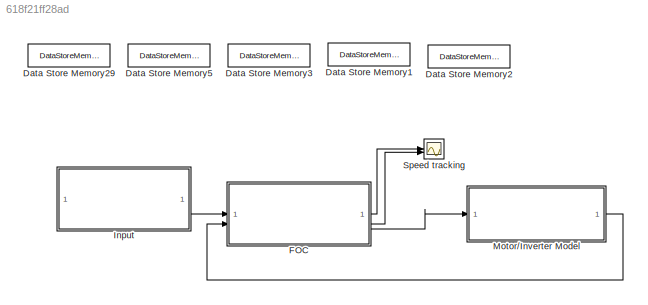
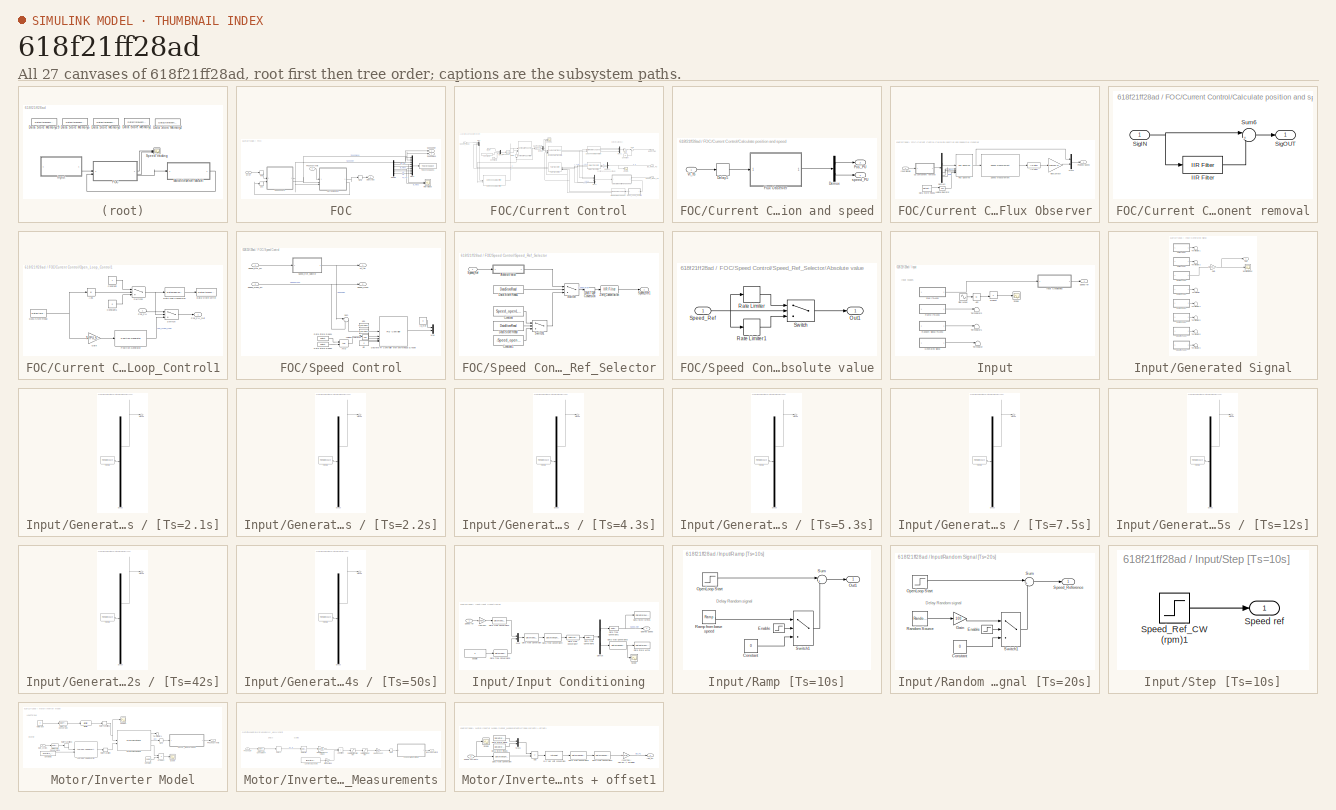
[diagram: thumbnail index - all 27 canvases of the model, root first then tree order]
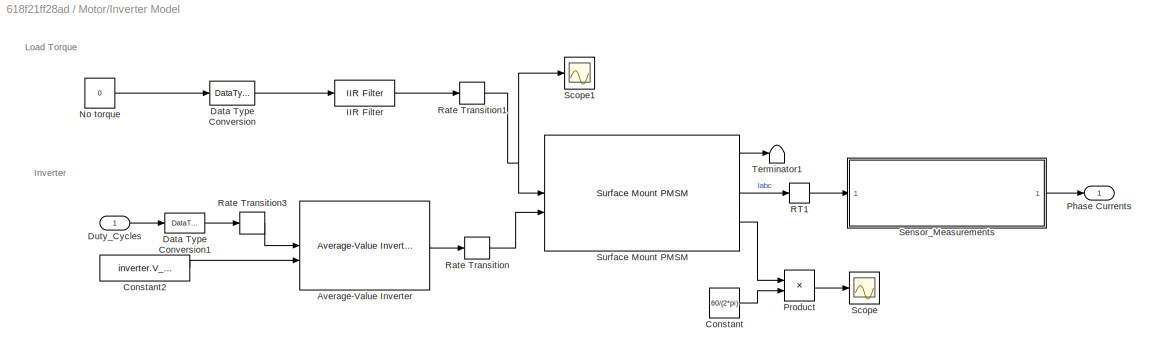
MODEL slx_618f21ff28ad
KIND model
CONFIG AbsTol = auto
CONFIG EnableMultiTasking = off
CONFIG FixedStep = auto
CONFIG MaxStep = auto
CONFIG MinStep = auto
CONFIG RelTol = 1e-3
CONFIG SampleTimeConstraint = Unconstrained
CONFIG SolverName = VariableStepAuto
CONFIG StartTime = 0.0
CONFIG StopTime = 10
BLOCK [DataStoreMemory] Data Store Memory1
  DataStoreName = IaOffset
  InitialValue = inverter.CtSensAOffset
  ShowAdditionalParam = off
BLOCK [DataStoreMemory] Data Store Memory2
  DataStoreName = IbOffset
  InitialValue = inverter.CtSensBOffset
  ShowAdditionalParam = off
BLOCK [DataStoreMemory] Data Store Memory29
  DataStoreName = Enable
  OutDataTypeStr = boolean
  ReadBeforeWriteMsg = warning
  ShowAdditionalParam = off
  WriteAfterReadMsg = warning
  WriteAfterWriteMsg = warning
BLOCK [DataStoreMemory] Data Store Memory3
  DataStoreName = Speed_ref
  InitialValue = 0.1
  OutDataTypeStr = dataType
  ReadBeforeWriteMsg = warning
  ShowAdditionalParam = off
  WriteAfterReadMsg = warning
  WriteAfterWriteMsg = warning
BLOCK [DataStoreMemory] Data Store Memory5
  DataStoreName = EnClosedLoop
  OutDataTypeStr = boolean
  ReadBeforeWriteMsg = warning
  ShowAdditionalParam = off
  WriteAfterReadMsg = warning
  WriteAfterWriteMsg = warning
BLOCK [SubSystem] FOC
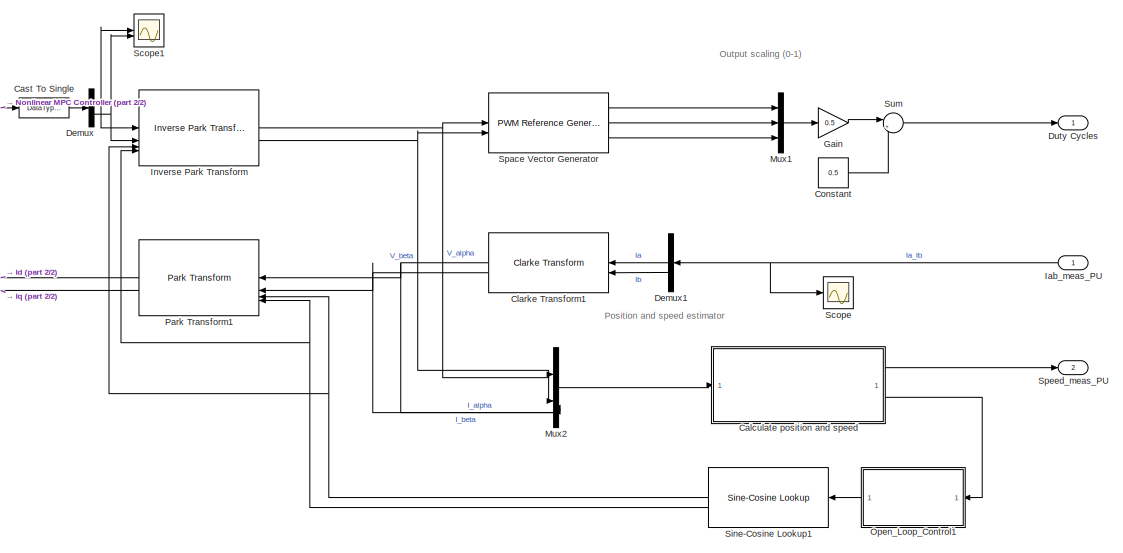
[diagram: FOC/Current Control - part 1/2, right side, full height]
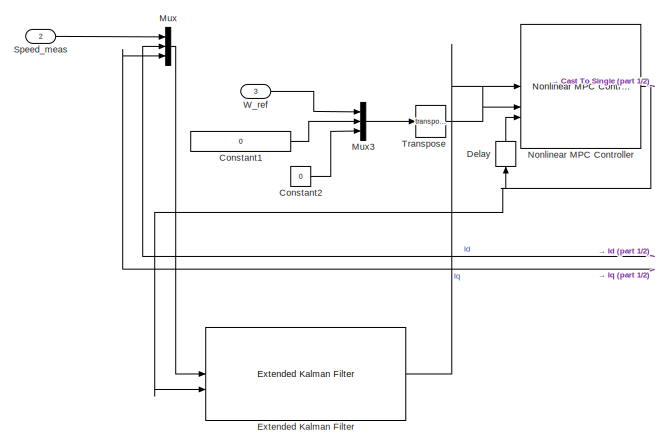
[diagram: FOC/Current Control - part 2/2, left side, full height]
BLOCK [SubSystem] FOC/Current Control
BLOCK [SubSystem] FOC/Current Control/Calculate position and speed
BLOCK [Delay] FOC/Current Control/Calculate position and speed/Delay5
  DelayLength = 1
  InputPortMap = u0
BLOCK [Demux] FOC/Current Control/Calculate position and speed/Demux
  Outputs = 2
BLOCK [SubSystem] FOC/Current Control/Calculate position and speed/Flux Observer
BLOCK [SubSystem] FOC/Current Control/Calculate position and speed/Flux Observer/DC component removal
BLOCK [Reference] FOC/Current Control/Calculate position and speed/Flux Observer/DC component removal/IIR Filter  REF=mcbcontrolslib/IIR Filter
  SourceBlock = mcbcontrolslib/IIR Filter
  SourceType = IIR Filter
BLOCK [Inport] FOC/Current Control/Calculate position and speed/Flux Observer/DC component removal/SigIN
BLOCK [Outport] FOC/Current Control/Calculate position and speed/Flux Observer/DC component removal/SigOUT
BLOCK [Sum] FOC/Current Control/Calculate position and speed/Flux Observer/DC component removal/Sum6
  AccumDataTypeStr = Inherit: Same as first input
  Inputs = |+-
  OutDataTypeStr = Inherit: Same as first input
  RndMeth = Simplest
BLOCK [DataStoreRead] FOC/Current Control/Calculate position and speed/Flux Observer/Data Store Read1
  DataStoreName = Enable
  IndexOptions = Index vector (dialog)
  Indices = 1
  OutputSizes = 1
BLOCK [Demux] FOC/Current Control/Calculate position and speed/Flux Observer/Demux2
BLOCK [Reference] FOC/Current Control/Calculate position and speed/Flux Observer/Flux Observer  REF=mcbpositiondecoderlib/Flux Observer
  SourceBlock = mcbpositiondecoderlib/Flux Observer
  SourceType = Flux Observer
BLOCK [Reference] FOC/Current Control/Calculate position and speed/Flux Observer/IIR Filter  REF=mcbcontrolslib/IIR Filter
  SourceBlock = mcbcontrolslib/IIR Filter
  SourceType = IIR Filter
BLOCK [Inport] FOC/Current Control/Calculate position and speed/Flux Observer/InputSignals
BLOCK [Logic] FOC/Current Control/Calculate position and speed/Flux Observer/Logical Operator
  AllPortsSameDT = off
  IconShape = distinctive
  Operator = NOT
  OutDataTypeStr = boolean
BLOCK [Mux] FOC/Current Control/Calculate position and speed/Flux Observer/Mux2
  DisplayOption = bar
  Inputs = 2
BLOCK [Outport] FOC/Current Control/Calculate position and speed/Flux Observer/Position//Speed
BLOCK [Reference] FOC/Current Control/Calculate position and speed/Flux Observer/Speed Measurement  REF=mcbpositiondecoderlib/Speed Measurement
  SourceBlock = mcbpositiondecoderlib/Speed Measurement
  SourceType = Speed Measurement
BLOCK [Gain] FOC/Current Control/Calculate position and speed/Flux Observer/elect2mech
  Gain = 1/pmsm.p
  OutDataTypeStr = Inherit: Same as input
  RndMeth = Simplest
BLOCK [Outport] FOC/Current Control/Calculate position and speed/Pos_PU
  Port = 2
BLOCK [Inport] FOC/Current Control/Calculate position and speed/VI_fb
BLOCK [Outport] FOC/Current Control/Calculate position and speed/speed_PU
BLOCK [DataTypeConversion] FOC/Current Control/Cast To Single
  OutDataTypeStr = single
  RndMeth = Floor
  SaturateOnIntegerOverflow = off
BLOCK [Reference] FOC/Current Control/Clarke Transform1  REF=mcbcontrolslib/Clarke Transform
  NameLocation = top
  SourceBlock = mcbcontrolslib/Clarke Transform
  SourceType = Clarke Transform
BLOCK [Constant] FOC/Current Control/Constant
  OutDataTypeStr = dataType
  Value = 0.5
BLOCK [Constant] FOC/Current Control/Constant1
  Value = 0
BLOCK [Constant] FOC/Current Control/Constant2
  Value = 0
BLOCK [Delay] FOC/Current Control/Delay
  DelayLength = 1
  InitialCondition = 0
  InputPortMap = u0
  NameLocation = left
  UseCircularBuffer = on
  UserDataPersistent = on
BLOCK [Demux] FOC/Current Control/Demux
  Outputs = 2
BLOCK [Demux] FOC/Current Control/Demux1
  NameLocation = top
  Outputs = 2
BLOCK [Outport] FOC/Current Control/Duty Cycles
  VectorParamsAs1DForOutWhenUnconnected = off
BLOCK [Reference] FOC/Current Control/Extended Kalman Filter  REF=sharedTrackingLibrary/Extended Kalman Filter
  LibrarySourceBlock = cstblocks/State Estimation/Extended Kalman Filter
  SourceBlock = sharedTrackingLibrary/Extended Kalman Filter
  SourceType = Extended Kalman Filter
BLOCK [Gain] FOC/Current Control/Gain
  Gain = 0.5
  OutDataTypeStr = Inherit: Same as input
BLOCK [Inport] FOC/Current Control/Iab_meas_PU
  NameLocation = top
BLOCK [Reference] FOC/Current Control/Inverse Park Transform  REF=mcbcontrolslib/Inverse Park Transform
  SourceBlock = mcbcontrolslib/Inverse Park Transform
  SourceType = Inverse Park Transform
BLOCK [Mux] FOC/Current Control/Mux
  DisplayOption = bar
  Inputs = 3
BLOCK [Mux] FOC/Current Control/Mux1
  DisplayOption = bar
  Inputs = 3
BLOCK [Mux] FOC/Current Control/Mux2
  DisplayOption = bar
BLOCK [Mux] FOC/Current Control/Mux3
  DisplayOption = bar
  Inputs = 3
BLOCK [Reference] FOC/Current Control/Nonlinear MPC Controller  REF=mpclib/Nonlinear MPC Controller  (lib defined in mdl_ae329e0e0455)
  SourceBlock = mpclib/Nonlinear MPC Controller
  SourceType = NonlinearMPC
BLOCK [SubSystem] FOC/Current Control/Open_Loop_Control1
  NameLocation = top
BLOCK [Abs] FOC/Current Control/Open_Loop_Control1/Abs
  SaturateOnIntegerOverflow = off
BLOCK [Constant] FOC/Current Control/Open_Loop_Control1/Constant
  OutDataTypeStr = uint16
BLOCK [Constant] FOC/Current Control/Open_Loop_Control1/Constant1
  OutDataTypeStr = uint16
  Value = 0
BLOCK [DataStoreRead] FOC/Current Control/Open_Loop_Control1/Data Store Read
  DataStoreName = Speed_ref
  IndexOptions = Index vector (dialog)
  Indices = 1
  OutputSizes = 1
BLOCK [DataStoreWrite] FOC/Current Control/Open_Loop_Control1/Data Store Write
  DataStoreName = EnClosedLoop
  IndexOptions = Index vector (dialog)
  Indices = 1
  OutputSizes = 1
BLOCK [DataTypeConversion] FOC/Current Control/Open_Loop_Control1/Data Type Conversion
  OutDataTypeStr = boolean
  RndMeth = Simplest
  SaturateOnIntegerOverflow = off
BLOCK [Gain] FOC/Current Control/Open_Loop_Control1/Gain
  Gain = Ts*PU_System.N_base*pmsm.p/60
  OutDataTypeStr = Inherit: Same as input
  ParamDataTypeStr = Inherit: Same as input
BLOCK [Inport] FOC/Current Control/Open_Loop_Control1/Pos_PU
BLOCK [Outport] FOC/Current Control/Open_Loop_Control1/Pos_PU_Out
BLOCK [Reference] FOC/Current Control/Open_Loop_Control1/Position Generator  REF=mcbcontrolslib/Position Generator
  SourceBlock = mcbcontrolslib/Position Generator
  SourceType = Position Generator
BLOCK [Switch] FOC/Current Control/Open_Loop_Control1/Switch
  Criteria = u2 ~= 0
  InputSameDT = off
  SaturateOnIntegerOverflow = off
  Threshold = 0.1
BLOCK [Switch] FOC/Current Control/Open_Loop_Control1/Switch2
  Criteria = u2 > Threshold
  InputSameDT = off
  SaturateOnIntegerOverflow = off
  Threshold = Speed_openLoop_PU
BLOCK [Reference] FOC/Current Control/Park Transform1  REF=mcbcontrolslib/Park Transform
  NameLocation = top
  SourceBlock = mcbcontrolslib/Park Transform
  SourceType = Park Transform
BLOCK [Scope] FOC/Current Control/Scope
  Floating = off
  NumInputPorts = 1
  ScopeSpecificationString = Simulink.scopes.TimeScopeBlockCfg('CurrentConfiguration', extmgr.ConfigurationSet(extmgr.Configuration('Core','General UI',true),extmgr.Configuration('Core','Source UI',true),extmgr.Configuration('Sources','WiredSimulink',true,'DataLoggingVariableName','ScopeData1'),extmgr.Configuration('Visuals','Time Domain',true,'SerializedDisplays',{struct('MinYLimReal','-1.45288','MaxYLimReal','1.21558','YLab...<+1495ch>
BLOCK [Scope] FOC/Current Control/Scope1
  Floating = off
  NumInputPorts = 2
  ScopeSpecificationString = Simulink.scopes.TimeScopeBlockCfg('CurrentConfiguration', extmgr.ConfigurationSet(extmgr.Configuration('Core','General UI',true),extmgr.Configuration('Core','Source UI',true),extmgr.Configuration('Sources','WiredSimulink',true,'DataLoggingVariableName','ScopeData1'),extmgr.Configuration('Visuals','Time Domain',true,'SerializedDisplays',{struct('MinYLimReal','0.20765','MaxYLimReal','0.55843','YLabe...<+1536ch>
BLOCK [Reference] FOC/Current Control/Sine-Cosine Lookup1  REF=mcbcontrolslib/Sine-Cosine Lookup
  NameLocation = top
  SourceBlock = mcbcontrolslib/Sine-Cosine Lookup
  SourceType = Sine-Cosine Lookup
BLOCK [Reference] FOC/Current Control/Space Vector Generator  REF=mcbcontrolslib/PWM Reference Generator
  SourceBlock = mcbcontrolslib/PWM Reference Generator
  SourceType = PWM Modulation
BLOCK [Inport] FOC/Current Control/Speed_meas
  Port = 2
BLOCK [Outport] FOC/Current Control/Speed_meas_PU
  InitialOutput = 0
  Port = 2
  VectorParamsAs1DForOutWhenUnconnected = off
BLOCK [Sum] FOC/Current Control/Sum
  AccumDataTypeStr = Inherit: Same as first input
  Inputs = |++
BLOCK [Math] FOC/Current Control/Transpose
  Operator = transpose
  OutputSignalType = real
BLOCK [Inport] FOC/Current Control/W_ref
  Port = 3
BLOCK [Demux] FOC/Demux
  Commented = on
  Outputs = 6
BLOCK [Outport] FOC/Duty cycles
  Port = 3
BLOCK [Scope] FOC/Internal loop
  Commented = on
  Floating = off
  NumInputPorts = 2
  ScopeSpecificationString = Simulink.scopes.TimeScopeBlockCfg('CurrentConfiguration', extmgr.ConfigurationSet(extmgr.Configuration('Core','General UI',true,'FigureColor',[1 1 1]),extmgr.Configuration('Core','Source UI',true),extmgr.Configuration('Sources','WiredSimulink',true,'DataLoggingVariableName','ScopeData4'),extmgr.Configuration('Visuals','Time Domain',true,'SerializedDisplays',{struct('MinYLimReal','-0.72705','MaxYLi...<+2022ch>
BLOCK [Mux] FOC/Mux1
  Commented = on
  DisplayOption = bar
  Inputs = 8
BLOCK [Inport] FOC/Phase Currents
  Port = 2
BLOCK [RateTransition] FOC/RT3
  Deterministic = off
BLOCK [RateTransition] FOC/RT4
  Deterministic = off
  OutPortSampleTime = Ts_speed
BLOCK [RateTransition] FOC/RT6
  Deterministic = off
  OutPortSampleTime = Ts_speed
BLOCK [SubSystem] FOC/Speed Control
  RTWSystemCode = Reusable function
  SystemSampleTime = Ts_speed
  TreatAsAtomicUnit = on
BLOCK [Logic] FOC/Speed Control/AND
  AllPortsSameDT = off
  Commented = on
  IconShape = distinctive
  OutDataTypeStr = boolean
BLOCK [DataStoreRead] FOC/Speed Control/Data Store Read1
  Commented = on
  DataStoreName = Enable
  IndexOptions = Index vector (dialog)
  Indices = 1
  OutputSizes = 1
BLOCK [DataStoreRead] FOC/Speed Control/Data Store Read2
  Commented = on
  DataStoreName = EnClosedLoop
  IndexOptions = Index vector (dialog)
  Indices = 1
  OutputSizes = 1
BLOCK [Reference] FOC/Speed Control/Discrete PI Controller with anti-windup & reset  REF=slpidlib/PID Controller
  Commented = on
  LibrarySourceBlock = mcbcontrolslib/PI Controller
  SourceBlock = slpidlib/PID Controller
  SourceType = PID 1dof
BLOCK [Constant] FOC/Speed Control/Id_Ref
  Commented = on
  OutDataTypeStr = dataType
  Value = 0
BLOCK [Constant] FOC/Speed Control/Ki1
  Commented = on
  NameLocation = top
  OutDataTypeStr = dataType
  SampleTime = -1
  Value = PI_params.Ki_speed*Ts_speed
BLOCK [Constant] FOC/Speed Control/Ki2
  Commented = on
  NameLocation = top
  OutDataTypeStr = dataType
  SampleTime = -1
  Value = 0
BLOCK [Constant] FOC/Speed Control/Kp1
  Commented = on
  NameLocation = top
  OutDataTypeStr = dataType
  SampleTime = -1
  Value = PI_params.Kp_speed
BLOCK [Logic] FOC/Speed Control/Logical Operator
  AllPortsSameDT = off
  Commented = on
  IconShape = distinctive
  Operator = NOT
  OutDataTypeStr = boolean
BLOCK [Mux] FOC/Speed Control/Mux
  Commented = on
  DisplayOption = bar
  Inputs = 2
BLOCK [Inport] FOC/Speed Control/Speed_Meas_PU
  Port = 2
BLOCK [Inport] FOC/Speed Control/Speed_Ref_PU
BLOCK [SubSystem] FOC/Speed Control/Speed_Ref_Selector
BLOCK [SubSystem] FOC/Speed Control/Speed_Ref_Selector/Absolute value
BLOCK [Outport] FOC/Speed Control/Speed_Ref_Selector/Absolute value/Out1
BLOCK [RateLimiter] FOC/Speed Control/Speed_Ref_Selector/Absolute value/Rate Limiter
  FallingSlewLimit = -acceleration
  InitialCondition = Speed_openLoop_PU
  RisingSlewLimit = acceleration
  SampleTimeMode = inherited
BLOCK [RateLimiter] FOC/Speed Control/Speed_Ref_Selector/Absolute value/Rate Limiter1
  FallingSlewLimit = -acceleration
  InitialCondition = -Speed_openLoop_PU
  RisingSlewLimit = acceleration
  SampleTimeMode = inherited
BLOCK [Inport] FOC/Speed Control/Speed_Ref_Selector/Absolute value/Speed_Ref
BLOCK [Switch] FOC/Speed Control/Speed_Ref_Selector/Absolute value/Switch
  InputSameDT = off
  SaturateOnIntegerOverflow = off
BLOCK [Constant] FOC/Speed Control/Speed_Ref_Selector/Constant
  OutDataTypeStr = dataType
  Value = Speed_openLoop_PU
BLOCK [Constant] FOC/Speed Control/Speed_Ref_Selector/Constant1
  OutDataTypeStr = dataType
  Value = -Speed_openLoop_PU
BLOCK [DataStoreRead] FOC/Speed Control/Speed_Ref_Selector/Data Store Read
  DataStoreName = Speed_ref
  IndexOptions = Index vector (dialog)
  Indices = 1
  OutputSizes = 1
BLOCK [DataStoreRead] FOC/Speed Control/Speed_Ref_Selector/Data Store Read1
  DataStoreName = EnClosedLoop
  IndexOptions = Index vector (dialog)
  Indices = 1
  OutputSizes = 1
BLOCK [DataTypeConversion] FOC/Speed Control/Speed_Ref_Selector/Data Type Conversion
  OutDataTypeStr = double
  RndMeth = Floor
  SaturateOnIntegerOverflow = off
BLOCK [Inport] FOC/Speed Control/Speed_Ref_Selector/Speed_Ref
BLOCK [Outport] FOC/Speed Control/Speed_Ref_Selector/Speed_Ref1
BLOCK [Switch] FOC/Speed Control/Speed_Ref_Selector/Switch
  Criteria = u2 > Threshold
  InputSameDT = off
  SaturateOnIntegerOverflow = off
BLOCK [Switch] FOC/Speed Control/Speed_Ref_Selector/Switch1
  Criteria = u2 > Threshold
  InputSameDT = off
  SaturateOnIntegerOverflow = off
BLOCK [Reference] FOC/Speed Control/Speed_Ref_Selector/Zero_Cancellation  REF=mcbcontrolslib/IIR Filter
  SourceBlock = mcbcontrolslib/IIR Filter
  SourceType = IIR Filter
BLOCK [Outport] FOC/Speed Control/Speed_meas
  Port = 2
  VectorParamsAs1DForOutWhenUnconnected = off
BLOCK [Sum] FOC/Speed Control/Sum
  Commented = on
  Inputs = |+-
  OutDataTypeStr = Inherit: Same as first input
BLOCK [Outport] FOC/Speed Control/W_ref
  VectorParamsAs1DForOutWhenUnconnected = off
BLOCK [Outport] FOC/SpeedMeas
  Port = 2
BLOCK [Outport] FOC/SpeedeRef
BLOCK [ToWorkspace] FOC/To Workspace1
  Commented = on
  FixptAsFi = on
  MaxDataPoints = inf
  SampleTime = -1
  SaveFormat = Structure
  VariableName = simout
BLOCK [Inport] FOC/Wref
BLOCK [SubSystem] Input
BLOCK [Abs] Input/Abs
  Commented = on
  SaturateOnIntegerOverflow = off
BLOCK [SubSystem] Input/Generated Signal
  NameLocation = top
BLOCK [SubSystem] Input/Generated Signal/0.05s // [Ts=2.1s]
  ClipboardFcn = sigbuilder_block('clipboard');
  CloseFcn = sigbuilder_block('close');
  ContinueFcn = sigbuilder_block('continue');
  CopyFcn = sigbuilder_block('copy');
  DeleteFcn = sigbuilder_block('delete');
  LoadFcn = sigbuilder_block('load');
  MaskHideContents = on
  ModelCloseFcn = sigbuilder_block('modelClose');
  NameChangeFcn = sigbuilder_block('namechange');
  OpenFcn = sigbuilder_block('open',[5.4 5.4 1141.2 580.8 ]);
  PauseFcn = sigbuilder_block('pause');
  PreSaveFcn = sigbuilder_block('preSave');
  StartFcn = sigbuilder_block('start');
  StopFcn = sigbuilder_block('stop');
  Tag = STV Subsys
BLOCK [Demux] Input/Generated Signal/0.05s // [Ts=2.1s]/Demux
  DisplayOption = none
  Outputs = 1
  Tag = STV Demux
BLOCK [FromWorkspace] Input/Generated Signal/0.05s // [Ts=2.1s]/FromWs
  Tag = STV FromWs
  VariableName = tuvar
BLOCK [Outport] Input/Generated Signal/0.05s // [Ts=2.1s]/Signal 1
  Tag = STV Outport
BLOCK [SubSystem] Input/Generated Signal/0.05s // [Ts=2.2s]
  ClipboardFcn = sigbuilder_block('clipboard');
  CloseFcn = sigbuilder_block('close');
  ContinueFcn = sigbuilder_block('continue');
  CopyFcn = sigbuilder_block('copy');
  DeleteFcn = sigbuilder_block('delete');
  LoadFcn = sigbuilder_block('load');
  MaskHideContents = on
  ModelCloseFcn = sigbuilder_block('modelClose');
  NameChangeFcn = sigbuilder_block('namechange');
  OpenFcn = sigbuilder_block('open',[5.4 5.4 1141.2 580.8 ]);
  PauseFcn = sigbuilder_block('pause');
  PreSaveFcn = sigbuilder_block('preSave');
  StartFcn = sigbuilder_block('start');
  StopFcn = sigbuilder_block('stop');
  Tag = STV Subsys
BLOCK [Demux] Input/Generated Signal/0.05s // [Ts=2.2s]/Demux
  DisplayOption = none
  Outputs = 1
  Tag = STV Demux
BLOCK [FromWorkspace] Input/Generated Signal/0.05s // [Ts=2.2s]/FromWs
  Tag = STV FromWs
  VariableName = tuvar
BLOCK [Outport] Input/Generated Signal/0.05s // [Ts=2.2s]/Signal 1
  Tag = STV Outport
BLOCK [SubSystem] Input/Generated Signal/0.2s // [Ts=4.3s]
  ClipboardFcn = sigbuilder_block('clipboard');
  CloseFcn = sigbuilder_block('close');
  ContinueFcn = sigbuilder_block('continue');
  CopyFcn = sigbuilder_block('copy');
  DeleteFcn = sigbuilder_block('delete');
  LoadFcn = sigbuilder_block('load');
  MaskHideContents = on
  ModelCloseFcn = sigbuilder_block('modelClose');
  NameChangeFcn = sigbuilder_block('namechange');
  OpenFcn = sigbuilder_block('open',[5.4 5.4 1141.2 580.8 ]);
  PauseFcn = sigbuilder_block('pause');
  PreSaveFcn = sigbuilder_block('preSave');
  StartFcn = sigbuilder_block('start');
  StopFcn = sigbuilder_block('stop');
  Tag = STV Subsys
BLOCK [Demux] Input/Generated Signal/0.2s // [Ts=4.3s]/Demux
  DisplayOption = none
  Outputs = 1
  Tag = STV Demux
BLOCK [FromWorkspace] Input/Generated Signal/0.2s // [Ts=4.3s]/FromWs
  Tag = STV FromWs
  VariableName = tuvar
BLOCK [Outport] Input/Generated Signal/0.2s // [Ts=4.3s]/Signal 1
  Tag = STV Outport
BLOCK [SubSystem] Input/Generated Signal/0.2s // [Ts=5.3s]
  ClipboardFcn = sigbuilder_block('clipboard');
  CloseFcn = sigbuilder_block('close');
  ContinueFcn = sigbuilder_block('continue');
  CopyFcn = sigbuilder_block('copy');
  DeleteFcn = sigbuilder_block('delete');
  LoadFcn = sigbuilder_block('load');
  MaskHideContents = on
  ModelCloseFcn = sigbuilder_block('modelClose');
  NameChangeFcn = sigbuilder_block('namechange');
  OpenFcn = sigbuilder_block('open',[1440 -126 1440 717.6 ]);
  PauseFcn = sigbuilder_block('pause');
  PreSaveFcn = sigbuilder_block('preSave');
  StartFcn = sigbuilder_block('start');
  StopFcn = sigbuilder_block('stop');
  Tag = STV Subsys
BLOCK [Demux] Input/Generated Signal/0.2s // [Ts=5.3s]/Demux
  DisplayOption = none
  Outputs = 1
  Tag = STV Demux
BLOCK [FromWorkspace] Input/Generated Signal/0.2s // [Ts=5.3s]/FromWs
  Tag = STV FromWs
  VariableName = tuvar
BLOCK [Outport] Input/Generated Signal/0.2s // [Ts=5.3s]/Signal 1
  Tag = STV Outport
BLOCK [SubSystem] Input/Generated Signal/0.3s // [Ts=7.5s]
  ClipboardFcn = sigbuilder_block('clipboard');
  CloseFcn = sigbuilder_block('close');
  ContinueFcn = sigbuilder_block('continue');
  CopyFcn = sigbuilder_block('copy');
  DeleteFcn = sigbuilder_block('delete');
  LoadFcn = sigbuilder_block('load');
  MaskHideContents = on
  ModelCloseFcn = sigbuilder_block('modelClose');
  NameChangeFcn = sigbuilder_block('namechange');
  OpenFcn = sigbuilder_block('open',[5.4 36 1141.2 516.6 ]);
  PauseFcn = sigbuilder_block('pause');
  PreSaveFcn = sigbuilder_block('preSave');
  StartFcn = sigbuilder_block('start');
  StopFcn = sigbuilder_block('stop');
  Tag = STV Subsys
BLOCK [Demux] Input/Generated Signal/0.3s // [Ts=7.5s]/Demux
  DisplayOption = none
  Outputs = 1
  Tag = STV Demux
BLOCK [FromWorkspace] Input/Generated Signal/0.3s // [Ts=7.5s]/FromWs
  Tag = STV FromWs
  VariableName = tuvar
BLOCK [Outport] Input/Generated Signal/0.3s // [Ts=7.5s]/Signal 1
  Tag = STV Outport
BLOCK [SubSystem] Input/Generated Signal/0.5s // [Ts=12s]
  ClipboardFcn = sigbuilder_block('clipboard');
  CloseFcn = sigbuilder_block('close');
  ContinueFcn = sigbuilder_block('continue');
  CopyFcn = sigbuilder_block('copy');
  DeleteFcn = sigbuilder_block('delete');
  LoadFcn = sigbuilder_block('load');
  MaskHideContents = on
  ModelCloseFcn = sigbuilder_block('modelClose');
  NameChangeFcn = sigbuilder_block('namechange');
  OpenFcn = sigbuilder_block('open',[5.4 36 1141.2 516.6 ]);
  PauseFcn = sigbuilder_block('pause');
  PreSaveFcn = sigbuilder_block('preSave');
  StartFcn = sigbuilder_block('start');
  StopFcn = sigbuilder_block('stop');
  Tag = STV Subsys
BLOCK [Demux] Input/Generated Signal/0.5s // [Ts=12s]/Demux
  DisplayOption = none
  Outputs = 1
  Tag = STV Demux
BLOCK [FromWorkspace] Input/Generated Signal/0.5s // [Ts=12s]/FromWs
  Tag = STV FromWs
  VariableName = tuvar
BLOCK [Outport] Input/Generated Signal/0.5s // [Ts=12s]/Signal 1
  Tag = STV Outport
BLOCK [SubSystem] Input/Generated Signal/2s // [Ts=42s]
  ClipboardFcn = sigbuilder_block('clipboard');
  CloseFcn = sigbuilder_block('close');
  ContinueFcn = sigbuilder_block('continue');
  CopyFcn = sigbuilder_block('copy');
  DeleteFcn = sigbuilder_block('delete');
  LoadFcn = sigbuilder_block('load');
  MaskHideContents = on
  ModelCloseFcn = sigbuilder_block('modelClose');
  NameChangeFcn = sigbuilder_block('namechange');
  OpenFcn = sigbuilder_block('open',[5.4 36.6 1141.2 516.6 ]);
  PauseFcn = sigbuilder_block('pause');
  PreSaveFcn = sigbuilder_block('preSave');
  StartFcn = sigbuilder_block('start');
  StopFcn = sigbuilder_block('stop');
  Tag = STV Subsys
BLOCK [Demux] Input/Generated Signal/2s // [Ts=42s]/Demux
  DisplayOption = none
  Outputs = 1
  Tag = STV Demux
BLOCK [FromWorkspace] Input/Generated Signal/2s // [Ts=42s]/FromWs
  Tag = STV FromWs
  VariableName = tuvar
BLOCK [Outport] Input/Generated Signal/2s // [Ts=42s]/Signal 1
  Tag = STV Outport
BLOCK [SubSystem] Input/Generated Signal/4s // [Ts=50s]
  ClipboardFcn = sigbuilder_block('clipboard');
  CloseFcn = sigbuilder_block('close');
  ContinueFcn = sigbuilder_block('continue');
  CopyFcn = sigbuilder_block('copy');
  DeleteFcn = sigbuilder_block('delete');
  LoadFcn = sigbuilder_block('load');
  MaskHideContents = on
  ModelCloseFcn = sigbuilder_block('modelClose');
  NameChangeFcn = sigbuilder_block('namechange');
  OpenFcn = sigbuilder_block('open',[0.6 36.6 574.8 494.4 ]);
  PauseFcn = sigbuilder_block('pause');
  PreSaveFcn = sigbuilder_block('preSave');
  StartFcn = sigbuilder_block('start');
  StopFcn = sigbuilder_block('stop');
  Tag = STV Subsys
BLOCK [Demux] Input/Generated Signal/4s // [Ts=50s]/Demux
  DisplayOption = none
  Outputs = 1
  Tag = STV Demux
BLOCK [FromWorkspace] Input/Generated Signal/4s // [Ts=50s]/FromWs
  Tag = STV FromWs
  VariableName = tuvar
BLOCK [Outport] Input/Generated Signal/4s // [Ts=50s]/Signal 1
  Tag = STV Outport
BLOCK [Gain] Input/Generated Signal/Gain
  Gain = Speed_openLoop_PU*pmsm.N_base / 0.1
BLOCK [Outport] Input/Generated Signal/Out1
BLOCK [Terminator] Input/Generated Signal/Terminator
BLOCK [Terminator] Input/Generated Signal/Terminator1
BLOCK [Terminator] Input/Generated Signal/Terminator2
BLOCK [Terminator] Input/Generated Signal/Terminator3
BLOCK [Terminator] Input/Generated Signal/Terminator4
BLOCK [Terminator] Input/Generated Signal/Terminator5
BLOCK [Terminator] Input/Generated Signal/Terminator6
BLOCK [Scope] Input/Generated Signal/Visualize input
  Floating = off
  NumInputPorts = 1
  ScopeSpecificationString = Simulink.scopes.TimeScopeBlockCfg('CurrentConfiguration', extmgr.ConfigurationSet(extmgr.Configuration('Core','General UI',true),extmgr.Configuration('Core','Source UI',true),extmgr.Configuration('Sources','WiredSimulink',true,'DataLoggingVariableName','ScopeData1'),extmgr.Configuration('Visuals','Time Domain',true,'SerializedDisplays',{struct('MinYLimReal','-163.755','MaxYLimReal','3657.195','YLa...<+1423ch>
BLOCK [SubSystem] Input/Input Conditioning
  RTWMemSecFuncExecute = code_ramfuncs
  SystemSampleTime = 1e-3
BLOCK [DataStoreWrite] Input/Input Conditioning/Data Store Write
  DataStoreName = Enable
  IndexOptions = Index vector (dialog)
  Indices = 1
  OutputSizes = 1
BLOCK [DataStoreWrite] Input/Input Conditioning/Data Store Write1
  DataStoreName = Speed_ref
  IndexOptions = Index vector (dialog)
  Indices = 1
  OutputSizes = 1
BLOCK [DataTypeConversion] Input/Input Conditioning/Data Type Conversion
  OutDataTypeStr = fixdt(1,16,12)
  RndMeth = Simplest
  SaturateOnIntegerOverflow = off
BLOCK [DataTypeConversion] Input/Input Conditioning/Data Type Conversion1
  OutDataTypeStr = dataType
  RndMeth = Simplest
  SaturateOnIntegerOverflow = off
BLOCK [DataTypeConversion] Input/Input Conditioning/Data Type Conversion2
  OutDataTypeStr = single
  RndMeth = Simplest
  SaturateOnIntegerOverflow = off
BLOCK [DataTypeConversion] Input/Input Conditioning/Data Type Conversion3
  OutDataTypeStr = boolean
  RndMeth = Simplest
  SaturateOnIntegerOverflow = off
BLOCK [DataTypeConversion] Input/Input Conditioning/Data Type Conversion4
  ConvertRealWorld = Stored Integer (SI)
  OutDataTypeStr = uint32
  RndMeth = Simplest
  SaturateOnIntegerOverflow = off
BLOCK [DataTypeConversion] Input/Input Conditioning/Data Type Conversion5
  OutDataTypeStr = single
  RndMeth = Simplest
  SaturateOnIntegerOverflow = off
BLOCK [DataTypeConversion] Input/Input Conditioning/Data Type Conversion6
  OutDataTypeStr = single
  RndMeth = Simplest
  SaturateOnIntegerOverflow = off
BLOCK [DataTypeConversion] Input/Input Conditioning/Data Type Conversion7
  ConvertRealWorld = Stored Integer (SI)
  OutDataTypeStr = fixdt(1,16,12)
  RndMeth = Simplest
  SaturateOnIntegerOverflow = off
BLOCK [Demux] Input/Input Conditioning/Demux
  Outputs = 2
BLOCK [Outport] Input/Input Conditioning/Desired Speed
  VectorParamsAs1DForOutWhenUnconnected = off
BLOCK [Constant] Input/Input Conditioning/Enable
  OutDataTypeStr = dataType
  SampleTime = -1
BLOCK [Mux] Input/Input Conditioning/Mux
  DisplayOption = bar
  Inputs = 2
BLOCK [Scope] Input/Input Conditioning/Scope
  Floating = off
  NumInputPorts = 1
  ScopeSpecificationString = Simulink.scopes.TimeScopeBlockCfg('CurrentConfiguration', extmgr.ConfigurationSet(extmgr.Configuration('Core','General UI',true),extmgr.Configuration('Core','Source UI',true),extmgr.Configuration('Sources','WiredSimulink',true,'DataLoggingVariableName','ScopeData1'),extmgr.Configuration('Visuals','Time Domain',true,'SerializedDisplays',{struct('MinYLimReal','0.9','MaxYLimReal','1.1','YLabelReal','...<+1464ch>
BLOCK [Inport] Input/Input Conditioning/Speed ref
BLOCK [Gain] Input/Input Conditioning/rpm2PU
  Gain = 1/pmsm.N_base
  OutDataTypeStr = Inherit: Same as input
  RndMeth = Simplest
BLOCK [Product] Input/Product
  Commented = on
BLOCK [SubSystem] Input/Ramp [Ts=10s]
  NameLocation = top
BLOCK [Constant] Input/Ramp [Ts=10s]/Constant
  Value = 0
BLOCK [Step] Input/Ramp [Ts=10s]/Enable
  Time = T_Ref_openLoop
BLOCK [Step] Input/Ramp [Ts=10s]/OpenLoop Start
  After = 0
  Before = Speed_openLoop_PU*pmsm.N_base
  Time = T_Ref_openLoop
BLOCK [Outport] Input/Ramp [Ts=10s]/Out1
BLOCK [Reference] Input/Ramp [Ts=10s]/Ramp from base speed  REF=simulink/Sources/Ramp
  SourceBlock = simulink/Sources/Ramp
  SourceType = Ramp
BLOCK [Sum] Input/Ramp [Ts=10s]/Sum
  Inputs = |++
BLOCK [Switch] Input/Ramp [Ts=10s]/Switch1
  InputSameDT = off
  RndMeth = Simplest
  SaturateOnIntegerOverflow = off
  Threshold = 0.5
BLOCK [SubSystem] Input/Random Signal [Ts=20s]
  NameLocation = top
BLOCK [Constant] Input/Random Signal [Ts=20s]/Constant
  Value = 0
BLOCK [Step] Input/Random Signal [Ts=20s]/Enable
  Time = T_Ref_openLoop
BLOCK [Gain] Input/Random Signal [Ts=20s]/Gain
  Gain = 100
BLOCK [Step] Input/Random Signal [Ts=20s]/OpenLoop Start
  After = Speed_openLoop_PU*pmsm.N_base
  Before = Speed_openLoop_PU*pmsm.N_base
  Time = T_Ref_openLoop
BLOCK [Reference] Input/Random Signal [Ts=20s]/Random Source  REF=dspobslib/Random
Source
  Diagnostics = AllowInheritedTsInSrc
  SourceBlock = dspobslib/Random\nSource
  SourceType = Random Source Obsolete
  UserDataPersistent = on
BLOCK [Outport] Input/Random Signal [Ts=20s]/Speed_Reference
BLOCK [Sum] Input/Random Signal [Ts=20s]/Sum
  Inputs = |++
BLOCK [Switch] Input/Random Signal [Ts=20s]/Switch1
  InputSameDT = off
  RndMeth = Simplest
  SaturateOnIntegerOverflow = off
  Threshold = 0.5
BLOCK [Scope] Input/Scope
  Commented = on
  Floating = off
  NumInputPorts = 1
  ScopeSpecificationString = Simulink.scopes.TimeScopeBlockCfg('CurrentConfiguration', extmgr.ConfigurationSet(extmgr.Configuration('Core','General UI',true),extmgr.Configuration('Core','Source UI',true),extmgr.Configuration('Sources','WiredSimulink',true,'DataLoggingVariableName','ScopeData1'),extmgr.Configuration('Visuals','Time Domain',true,'SerializedDisplays',{struct('MinYLimReal','364.21758','MaxYLimReal','398.65655','Y...<+1498ch>
BLOCK [Sin] Input/Sine Wave
  Commented = on
  Frequency = 0.5
  Phase = 30
  SampleTime = 0.5
BLOCK [Outport] Input/Speed ref
BLOCK [SubSystem] Input/Step [Ts=10s]
  NameLocation = top
BLOCK [Outport] Input/Step [Ts=10s]/Speed ref
BLOCK [Step] Input/Step [Ts=10s]/Speed_Ref_CW (rpm)1
  After = 0.4*pmsm.N_base
  Before = Speed_openLoop_PU*pmsm.N_base
  Time = T_Ref_openLoop
BLOCK [Terminator] Input/Terminator
BLOCK [Terminator] Input/Terminator1
BLOCK [Terminator] Input/Terminator2
BLOCK [SubSystem] Motor//Inverter Model
  RTWSystemCode = Reusable function
BLOCK [Reference] Motor//Inverter Model/Average-Value Inverter  REF=mcbplantlib/Average-Value Inverter
  SourceBlock = mcbplantlib/Average-Value Inverter
  SourceType = Average Value Inverter
BLOCK [Constant] Motor//Inverter Model/Constant
  Value = 60/(2*pi)
BLOCK [Constant] Motor//Inverter Model/Constant2
  OutDataTypeStr = single
  SampleTime = -1
  Value = inverter.V_dc
BLOCK [DataTypeConversion] Motor//Inverter Model/Data Type Conversion
  OutDataTypeStr = single
  RndMeth = Floor
  SaturateOnIntegerOverflow = off
BLOCK [DataTypeConversion] Motor//Inverter Model/Data Type Conversion1
  OutDataTypeStr = single
  RndMeth = Simplest
  SaturateOnIntegerOverflow = off
BLOCK [Inport] Motor//Inverter Model/Duty_Cycles
BLOCK [Reference] Motor//Inverter Model/IIR Filter  REF=mcbcontrolslib/IIR Filter
  SourceBlock = mcbcontrolslib/IIR Filter
  SourceType = IIR Filter
BLOCK [Constant] Motor//Inverter Model/No torque
  Value = 0
BLOCK [Outport] Motor//Inverter Model/Phase Currents
  VectorParamsAs1DForOutWhenUnconnected = off
BLOCK [Product] Motor//Inverter Model/Product
BLOCK [RateTransition] Motor//Inverter Model/RT1
  Deterministic = off
  OutPortSampleTime = Ts_simulink
BLOCK [RateTransition] Motor//Inverter Model/Rate Transition
  Deterministic = off
  OutPortSampleTime = Ts_motor
BLOCK [RateTransition] Motor//Inverter Model/Rate Transition1
  Deterministic = off
  OutPortSampleTime = Ts_motor
BLOCK [RateTransition] Motor//Inverter Model/Rate Transition3
  Deterministic = off
  OutPortSampleTime = Ts_inverter
BLOCK [Scope] Motor//Inverter Model/Scope
  Floating = off
  NumInputPorts = 1
  ScopeSpecificationString = Simulink.scopes.TimeScopeBlockCfg('CurrentConfiguration', extmgr.ConfigurationSet(extmgr.Configuration('Core','General UI',true),extmgr.Configuration('Core','Source UI',true),extmgr.Configuration('Sources','WiredSimulink',true,'DataLoggingVariableName','ScopeData1'),extmgr.Configuration('Visuals','Time Domain',true,'SerializedDisplays',{struct('MinYLimReal','-311.72587','MaxYLimReal','1825.21192',...<+1502ch>
BLOCK [Scope] Motor//Inverter Model/Scope1
  Floating = off
  NumInputPorts = 1
  ScopeSpecificationString = Simulink.scopes.TimeScopeBlockCfg('CurrentConfiguration', extmgr.ConfigurationSet(extmgr.Configuration('Core','General UI',true),extmgr.Configuration('Core','Source UI',true),extmgr.Configuration('Sources','WiredSimulink',true,'DataLoggingVariableName','ScopeData2'),extmgr.Configuration('Visuals','Time Domain',true,'SerializedDisplays',{struct('MinYLimReal','-1.00000','MaxYLimReal','1.00000','YLab...<+1493ch>
BLOCK [SubSystem] Motor//Inverter Model/Sensor_Measurements
BLOCK [Sum] Motor//Inverter Model/Sensor_Measurements/Add Offset
  IconShape = rectangular
  RndMeth = Simplest
BLOCK [DataTypeConversion] Motor//Inverter Model/Sensor_Measurements/Data Type Conversion4
  OutDataTypeStr = single
  RndMeth = Simplest
  SaturateOnIntegerOverflow = off
BLOCK [Delay] Motor//Inverter Model/Sensor_Measurements/Delay1
  DelayLength = 1
  InputPortMap = u0
BLOCK [Gain] Motor//Inverter Model/Sensor_Measurements/Get ADC Count
  Gain = target.ADC_MaxCount/target.ADC_Vref
  OutDataTypeStr = uint16
  OutMax = target.ADC_MaxCount
  OutMin = 0
  RndMeth = Simplest
BLOCK [Gain] Motor//Inverter Model/Sensor_Measurements/Get Current Sense Voltage
  Gain = inverter.invertingAmp * inverter.ISenseVoltPerAmp
  OutDataTypeStr = Inherit: Same as input
  RndMeth = Simplest
BLOCK [Outport] Motor//Inverter Model/Sensor_Measurements/Measured Currents
  VectorParamsAs1DForOutWhenUnconnected = off
BLOCK [Gain] Motor//Inverter Model/Sensor_Measurements/Offset voltage
  Gain = target.ADC_Vref / target.ADC_MaxCount
  RndMeth = Simplest
BLOCK [SubSystem] Motor//Inverter Model/Sensor_Measurements/Phase currents + offset1
BLOCK [Sum] Motor//Inverter Model/Sensor_Measurements/Phase currents + offset1/Add
  IconShape = rectangular
  Inputs = -+
BLOCK [DataStoreRead] Motor//Inverter Model/Sensor_Measurements/Phase currents + offset1/Data Store Read
  DataStoreName = IaOffset
  IndexOptions = Index vector (dialog)
  Indices = 1
  OutputSizes = 1
BLOCK [DataStoreRead] Motor//Inverter Model/Sensor_Measurements/Phase currents + offset1/Data Store Read1
  DataStoreName = IbOffset
  IndexOptions = Index vector (dialog)
  Indices = 1
  OutputSizes = 1
BLOCK [DataTypeConversion] Motor//Inverter Model/Sensor_Measurements/Phase currents + offset1/Data Type Conversion
  ConvertRealWorld = Stored Integer (SI)
  OutDataTypeStr = int32
  RndMeth = Floor
  SaturateOnIntegerOverflow = off
BLOCK [DataTypeConversion] Motor//Inverter Model/Sensor_Measurements/Phase currents + offset1/Data Type Conversion1
  OutDataTypeStr = dataType
  RndMeth = Floor
  SaturateOnIntegerOverflow = off
BLOCK [DataTypeConversion] Motor//Inverter Model/Sensor_Measurements/Phase currents + offset1/Data Type Conversion3
  ConvertRealWorld = Stored Integer (SI)
  OutDataTypeStr = fixdt(1,32,17)
  RndMeth = Simplest
  SaturateOnIntegerOverflow = off
BLOCK [Outport] Motor//Inverter Model/Sensor_Measurements/Phase currents + offset1/Iab_PU
BLOCK [Gain] Motor//Inverter Model/Sensor_Measurements/Phase currents + offset1/Inverting // Non-inverting Current measurement amplifier
  Gain = inverter.invertingAmp
  OutDataTypeStr = Inherit: Same as input
  RndMeth = Simplest
BLOCK [Mux] Motor//Inverter Model/Sensor_Measurements/Phase currents + offset1/Mux1
  DisplayOption = bar
  Inputs = 2
BLOCK [Inport] Motor//Inverter Model/Sensor_Measurements/Phase currents + offset1/Phase currents
BLOCK [ArithShift] Motor//Inverter Model/Sensor_Measurements/Phase currents + offset1/Q17 per unit conversion
  BitShiftNumber = -6
  InputPortMap = u0
BLOCK [Scope] Motor//Inverter Model/Sensor_Measurements/Phase currents + offset1/Scope
  Floating = off
  NumInputPorts = 1
  ScopeSpecificationString = Simulink.scopes.TimeScopeBlockCfg('CurrentConfiguration', extmgr.ConfigurationSet(extmgr.Configuration('Core','General UI',true),extmgr.Configuration('Core','Source UI',true),extmgr.Configuration('Sources','WiredSimulink',true,'DataLoggingVariableName','ScopeData2'),extmgr.Configuration('Visuals','Time Domain',true,'SerializedDisplays',{struct('MinYLimReal','-511.75','MaxYLimReal','4605.75','YLabe...<+1512ch>
BLOCK [Inport] Motor//Inverter Model/Sensor_Measurements/PhaseCurr
BLOCK [RateTransition] Motor//Inverter Model/Sensor_Measurements/RT5
  Deterministic = off
BLOCK [Saturate] Motor//Inverter Model/Sensor_Measurements/Saturate at ADC Vref
  LowerLimit = 0
  UpperLimit = target.ADC_Vref
BLOCK [Saturate] Motor//Inverter Model/Sensor_Measurements/Saturate at inverter Vref
  LowerLimit = 0
  UpperLimit = inverter.ISenseVref
BLOCK [Selector] Motor//Inverter Model/Sensor_Measurements/Selector
  IndexOptions = Index vector (dialog)
  Indices = [1 2]
  InputPortWidth = 3
  OutputSizes = 1
BLOCK [Constant] Motor//Inverter Model/Sensor_Measurements/~1.65V in ADC counts
  OutDataTypeStr = uint16
  SampleTime = -1
  Value = [inverter.CtSensAOffset inverter.CtSensBOffset]
BLOCK [Reference] Motor//Inverter Model/Surface Mount PMSM  REF=autolibpmsmexterior/Surface Mount PMSM
  LibrarySourceBlock = mcblib/Electrical Systems/Motors/Surface Mount PMSM
  SourceBlock = autolibpmsmexterior/Surface Mount PMSM
  SourceType = Surface Mount PMSM
BLOCK [Terminator] Motor//Inverter Model/Terminator1
BLOCK [Scope] Speed tracking
  Floating = off
  NumInputPorts = 2
  ScopeSpecificationString = Simulink.scopes.TimeScopeBlockCfg('CurrentConfiguration', extmgr.ConfigurationSet(extmgr.Configuration('Core','General UI',true,'FigureColor',[1 1 1]),extmgr.Configuration('Core','Source UI',true),extmgr.Configuration('Sources','WiredSimulink',true,'DataLoggingVariableName','ScopeData1'),extmgr.Configuration('Visuals','Time Domain',true,'SerializedDisplays',{struct('MinYLimReal','-0.52524','MaxYLi...<+1696ch>
ANNOTATION FOC/Current Control: Position and speed estimator
ANNOTATION FOC/Current Control: Output scaling (0-1)
ANNOTATION Input: Input shapes
ANNOTATION Input/Ramp [Ts=10s]: Delay Random signal
ANNOTATION Input/Random Signal [Ts=20s]: Delay Random signal
ANNOTATION Motor//Inverter Model: Inverter
ANNOTATION Motor//Inverter Model: Load Torque
ANNOTATION Motor//Inverter Model/Sensor_Measurements: Delays
ANNOTATION Motor//Inverter Model/Sensor_Measurements: Scaling
LINE FOC/Current Control/Calculate position and speed/Delay5:1 -> FOC/Current Control/Calculate position and speed/Flux Observer:1
LINE FOC/Current Control/Calculate position and speed/Demux:1 -> FOC/Current Control/Calculate position and speed/Pos_PU:1
LINE FOC/Current Control/Calculate position and speed/Demux:2 -> FOC/Current Control/Calculate position and speed/speed_PU:1
LINE FOC/Current Control/Calculate position and speed/Flux Observer/DC component removal/IIR Filter:1 -> FOC/Current Control/Calculate position and speed/Flux Observer/DC component removal/Sum6:2
NET FOC/Current Control/Calculate position and speed/Flux Observer/DC component removal/SigIN:1 -> FOC/Current Control/Calculate position and speed/Flux Observer/DC component removal/IIR Filter:1, FOC/Current Control/Calculate position and speed/Flux Observer/DC component removal/Sum6:1
LINE FOC/Current Control/Calculate position and speed/Flux Observer/DC component removal/Sum6:1 -> FOC/Current Control/Calculate position and speed/Flux Observer/DC component removal/SigOUT:1
LINE FOC/Current Control/Calculate position and speed/Flux Observer/DC component removal:1 -> FOC/Current Control/Calculate position and speed/Flux Observer/Demux2:1
LINE FOC/Current Control/Calculate position and speed/Flux Observer/Data Store Read1:1 -> FOC/Current Control/Calculate position and speed/Flux Observer/Logical Operator:1
LINE FOC/Current Control/Calculate position and speed/Flux Observer/Demux2:1 -> FOC/Current Control/Calculate position and speed/Flux Observer/Flux Observer:1
LINE FOC/Current Control/Calculate position and speed/Flux Observer/Demux2:2 -> FOC/Current Control/Calculate position and speed/Flux Observer/Flux Observer:2
LINE FOC/Current Control/Calculate position and speed/Flux Observer/Demux2:3 -> FOC/Current Control/Calculate position and speed/Flux Observer/Flux Observer:3
LINE FOC/Current Control/Calculate position and speed/Flux Observer/Demux2:4 -> FOC/Current Control/Calculate position and speed/Flux Observer/Flux Observer:4
NET FOC/Current Control/Calculate position and speed/Flux Observer/Flux Observer:1 -> FOC/Current Control/Calculate position and speed/Flux Observer/Mux2:1, FOC/Current Control/Calculate position and speed/Flux Observer/Speed Measurement:1
LINE FOC/Current Control/Calculate position and speed/Flux Observer/IIR Filter:1 -> FOC/Current Control/Calculate position and speed/Flux Observer/elect2mech:1
LINE FOC/Current Control/Calculate position and speed/Flux Observer/InputSignals:1 -> FOC/Current Control/Calculate position and speed/Flux Observer/DC component removal:1
LINE FOC/Current Control/Calculate position and speed/Flux Observer/Logical Operator:1 -> FOC/Current Control/Calculate position and speed/Flux Observer/Flux Observer:5
LINE FOC/Current Control/Calculate position and speed/Flux Observer/Mux2:1 -> FOC/Current Control/Calculate position and speed/Flux Observer/Position//Speed:1
LINE FOC/Current Control/Calculate position and speed/Flux Observer/Speed Measurement:1 -> FOC/Current Control/Calculate position and speed/Flux Observer/IIR Filter:1
LINE FOC/Current Control/Calculate position and speed/Flux Observer/elect2mech:1 -> FOC/Current Control/Calculate position and speed/Flux Observer/Mux2:2
LINE FOC/Current Control/Calculate position and speed/Flux Observer:1 -> FOC/Current Control/Calculate position and speed/Demux:1
LINE FOC/Current Control/Calculate position and speed/VI_fb:1 -> FOC/Current Control/Calculate position and speed/Delay5:1
LINE FOC/Current Control/Calculate position and speed:1 -> FOC/Current Control/Speed_meas_PU:1
LINE FOC/Current Control/Calculate position and speed:2 -> FOC/Current Control/Open_Loop_Control1:1
LINE FOC/Current Control/Cast To Single:1 -> FOC/Current Control/Demux:1
NET FOC/Current Control/Clarke Transform1:1 -> FOC/Current Control/Mux2:3, FOC/Current Control/Park Transform1:1
NET FOC/Current Control/Clarke Transform1:2 -> FOC/Current Control/Mux2:4, FOC/Current Control/Park Transform1:2
LINE FOC/Current Control/Constant1:1 -> FOC/Current Control/Mux3:2
LINE FOC/Current Control/Constant2:1 -> FOC/Current Control/Mux3:3
LINE FOC/Current Control/Constant:1 -> FOC/Current Control/Sum:2
LINE FOC/Current Control/Delay:1 -> FOC/Current Control/Nonlinear MPC Controller:3
LINE FOC/Current Control/Demux1:1 -> FOC/Current Control/Clarke Transform1:1
LINE FOC/Current Control/Demux1:2 -> FOC/Current Control/Clarke Transform1:2
NET FOC/Current Control/Demux:1 -> FOC/Current Control/Inverse Park Transform:1, FOC/Current Control/Scope1:1
NET FOC/Current Control/Demux:2 -> FOC/Current Control/Inverse Park Transform:2, FOC/Current Control/Scope1:2
LINE FOC/Current Control/Extended Kalman Filter:1 -> FOC/Current Control/Nonlinear MPC Controller:1
LINE FOC/Current Control/Gain:1 -> FOC/Current Control/Sum:1
NET FOC/Current Control/Iab_meas_PU:1 -> FOC/Current Control/Demux1:1, FOC/Current Control/Scope:1
NET FOC/Current Control/Inverse Park Transform:1 -> FOC/Current Control/Mux2:1, FOC/Current Control/Space Vector Generator:1
NET FOC/Current Control/Inverse Park Transform:2 -> FOC/Current Control/Mux2:2, FOC/Current Control/Space Vector Generator:2
LINE FOC/Current Control/Mux1:1 -> FOC/Current Control/Gain:1
LINE FOC/Current Control/Mux2:1 -> FOC/Current Control/Calculate position and speed:1
LINE FOC/Current Control/Mux3:1 -> FOC/Current Control/Transpose:1
LINE FOC/Current Control/Mux:1 -> FOC/Current Control/Extended Kalman Filter:1
NET FOC/Current Control/Nonlinear MPC Controller:1 -> FOC/Current Control/Cast To Single:1, FOC/Current Control/Delay:1, FOC/Current Control/Extended Kalman Filter:2
LINE FOC/Current Control/Open_Loop_Control1/Abs:1 -> FOC/Current Control/Open_Loop_Control1/Switch2:2
LINE FOC/Current Control/Open_Loop_Control1/Constant1:1 -> FOC/Current Control/Open_Loop_Control1/Switch2:3
LINE FOC/Current Control/Open_Loop_Control1/Constant:1 -> FOC/Current Control/Open_Loop_Control1/Switch2:1
NET FOC/Current Control/Open_Loop_Control1/Data Store Read:1 -> FOC/Current Control/Open_Loop_Control1/Abs:1, FOC/Current Control/Open_Loop_Control1/Gain:1
LINE FOC/Current Control/Open_Loop_Control1/Data Type Conversion:1 -> FOC/Current Control/Open_Loop_Control1/Data Store Write:1
LINE FOC/Current Control/Open_Loop_Control1/Gain:1 -> FOC/Current Control/Open_Loop_Control1/Position Generator:1
LINE FOC/Current Control/Open_Loop_Control1/Pos_PU:1 -> FOC/Current Control/Open_Loop_Control1/Switch:1
LINE FOC/Current Control/Open_Loop_Control1/Position Generator:1 -> FOC/Current Control/Open_Loop_Control1/Switch:3
NET FOC/Current Control/Open_Loop_Control1/Switch2:1 -> FOC/Current Control/Open_Loop_Control1/Data Type Conversion:1, FOC/Current Control/Open_Loop_Control1/Switch:2
LINE FOC/Current Control/Open_Loop_Control1/Switch:1 -> FOC/Current Control/Open_Loop_Control1/Pos_PU_Out:1
LINE FOC/Current Control/Open_Loop_Control1:1 -> FOC/Current Control/Sine-Cosine Lookup1:1
LINE FOC/Current Control/Park Transform1:1 -> FOC/Current Control/Mux:2
LINE FOC/Current Control/Park Transform1:2 -> FOC/Current Control/Mux:3
NET FOC/Current Control/Sine-Cosine Lookup1:1 -> FOC/Current Control/Inverse Park Transform:3, FOC/Current Control/Park Transform1:3
NET FOC/Current Control/Sine-Cosine Lookup1:2 -> FOC/Current Control/Inverse Park Transform:4, FOC/Current Control/Park Transform1:4
LINE FOC/Current Control/Space Vector Generator:1 -> FOC/Current Control/Mux1:1
LINE FOC/Current Control/Space Vector Generator:2 -> FOC/Current Control/Mux1:2
LINE FOC/Current Control/Space Vector Generator:3 -> FOC/Current Control/Mux1:3
LINE FOC/Current Control/Speed_meas:1 -> FOC/Current Control/Mux:1
LINE FOC/Current Control/Sum:1 -> FOC/Current Control/Duty Cycles:1
LINE FOC/Current Control/Transpose:1 -> FOC/Current Control/Nonlinear MPC Controller:2
LINE FOC/Current Control/W_ref:1 -> FOC/Current Control/Mux3:1
LINE FOC/Current Control:1 -> FOC/RT3:1
LINE FOC/Current Control:2 -> FOC/RT4:1
LINE FOC/Demux:1 -> FOC/Mux1:3
NET FOC/Demux:2 -> FOC/Internal loop:1, FOC/Mux1:4
LINE FOC/Demux:3 -> FOC/Mux1:5
NET FOC/Demux:4 -> FOC/Internal loop:2, FOC/Mux1:6
LINE FOC/Demux:5 -> FOC/Mux1:7
LINE FOC/Demux:6 -> FOC/Mux1:8
LINE FOC/Mux1:1 -> FOC/To Workspace1:1
LINE FOC/Phase Currents:1 -> FOC/Current Control:1
LINE FOC/RT3:1 -> FOC/Duty cycles:1
LINE FOC/RT4:1 -> FOC/Speed Control:2
LINE FOC/RT6:1 -> FOC/Speed Control:1
LINE FOC/Speed Control/AND:1 -> FOC/Speed Control/Logical Operator:1
LINE FOC/Speed Control/Data Store Read1:1 -> FOC/Speed Control/AND:1
LINE FOC/Speed Control/Data Store Read2:1 -> FOC/Speed Control/AND:2
LINE FOC/Speed Control/Discrete PI Controller with anti-windup & reset:1 -> FOC/Speed Control/Mux:2
LINE FOC/Speed Control/Id_Ref:1 -> FOC/Speed Control/Mux:1
LINE FOC/Speed Control/Ki1:1 -> FOC/Speed Control/Discrete PI Controller with anti-windup & reset:3
LINE FOC/Speed Control/Ki2:1 -> FOC/Speed Control/Discrete PI Controller with anti-windup & reset:5
LINE FOC/Speed Control/Kp1:1 -> FOC/Speed Control/Discrete PI Controller with anti-windup & reset:2
LINE FOC/Speed Control/Logical Operator:1 -> FOC/Speed Control/Discrete PI Controller with anti-windup & reset:4
NET FOC/Speed Control/Speed_Meas_PU:1 -> FOC/Speed Control/Speed_meas:1, FOC/Speed Control/Sum:2
LINE FOC/Speed Control/Speed_Ref_PU:1 -> FOC/Speed Control/Speed_Ref_Selector:1
LINE FOC/Speed Control/Speed_Ref_Selector/Absolute value/Rate Limiter1:1 -> FOC/Speed Control/Speed_Ref_Selector/Absolute value/Switch:3
LINE FOC/Speed Control/Speed_Ref_Selector/Absolute value/Rate Limiter:1 -> FOC/Speed Control/Speed_Ref_Selector/Absolute value/Switch:1
NET FOC/Speed Control/Speed_Ref_Selector/Absolute value/Speed_Ref:1 -> FOC/Speed Control/Speed_Ref_Selector/Absolute value/Rate Limiter1:1, FOC/Speed Control/Speed_Ref_Selector/Absolute value/Rate Limiter:1, FOC/Speed Control/Speed_Ref_Selector/Absolute value/Switch:2
LINE FOC/Speed Control/Speed_Ref_Selector/Absolute value/Switch:1 -> FOC/Speed Control/Speed_Ref_Selector/Absolute value/Out1:1
LINE FOC/Speed Control/Speed_Ref_Selector/Absolute value:1 -> FOC/Speed Control/Speed_Ref_Selector/Switch:1
LINE FOC/Speed Control/Speed_Ref_Selector/Constant1:1 -> FOC/Speed Control/Speed_Ref_Selector/Switch1:3
LINE FOC/Speed Control/Speed_Ref_Selector/Constant:1 -> FOC/Speed Control/Speed_Ref_Selector/Switch1:1
LINE FOC/Speed Control/Speed_Ref_Selector/Data Store Read1:1 -> FOC/Speed Control/Speed_Ref_Selector/Switch:2
LINE FOC/Speed Control/Speed_Ref_Selector/Data Store Read:1 -> FOC/Speed Control/Speed_Ref_Selector/Switch1:2
LINE FOC/Speed Control/Speed_Ref_Selector/Data Type Conversion:1 -> FOC/Speed Control/Speed_Ref_Selector/Zero_Cancellation:1
LINE FOC/Speed Control/Speed_Ref_Selector/Speed_Ref:1 -> FOC/Speed Control/Speed_Ref_Selector/Absolute value:1
LINE FOC/Speed Control/Speed_Ref_Selector/Switch1:1 -> FOC/Speed Control/Speed_Ref_Selector/Switch:3
LINE FOC/Speed Control/Speed_Ref_Selector/Switch:1 -> FOC/Speed Control/Speed_Ref_Selector/Data Type Conversion:1
LINE FOC/Speed Control/Speed_Ref_Selector/Zero_Cancellation:1 -> FOC/Speed Control/Speed_Ref_Selector/Speed_Ref1:1
NET FOC/Speed Control/Speed_Ref_Selector:1 -> FOC/Speed Control/Sum:1, FOC/Speed Control/W_ref:1
LINE FOC/Speed Control/Sum:1 -> FOC/Speed Control/Discrete PI Controller with anti-windup & reset:1
NET FOC/Speed Control:1 -> FOC/Current Control:3, FOC/Mux1:1, FOC/SpeedeRef:1
NET FOC/Speed Control:2 -> FOC/Current Control:2, FOC/Mux1:2, FOC/SpeedMeas:1
LINE FOC/Wref:1 -> FOC/RT6:1
LINE FOC:1 -> Speed tracking:1
LINE FOC:2 -> Speed tracking:2
LINE FOC:3 -> Motor//Inverter Model:1
LINE Input/Abs:1 -> Input/Product:2
LINE Input/Generated Signal/0.05s // [Ts=2.1s]:1 -> Input/Generated Signal/Terminator6:1
LINE Input/Generated Signal/0.05s // [Ts=2.2s]:1 -> Input/Generated Signal/Terminator3:1
LINE Input/Generated Signal/0.2s // [Ts=4.3s]:1 -> Input/Generated Signal/Terminator5:1
LINE Input/Generated Signal/0.2s // [Ts=5.3s]:1 -> Input/Generated Signal/Terminator4:1
LINE Input/Generated Signal/0.3s // [Ts=7.5s]:1 -> Input/Generated Signal/Terminator:1
LINE Input/Generated Signal/0.5s // [Ts=12s]:1 -> Input/Generated Signal/Gain:1
LINE Input/Generated Signal/2s // [Ts=42s]:1 -> Input/Generated Signal/Terminator2:1
LINE Input/Generated Signal/4s // [Ts=50s]:1 -> Input/Generated Signal/Terminator1:1
NET Input/Generated Signal/Gain:1 -> Input/Generated Signal/Out1:1, Input/Generated Signal/Visualize input:1
LINE Input/Generated Signal:1 -> Input/Terminator:1
NET Input/Input Conditioning/Data Type Conversion1:1 -> Input/Input Conditioning/Data Store Write1:1, Input/Input Conditioning/Desired Speed:1
LINE Input/Input Conditioning/Data Type Conversion2:1 -> Input/Input Conditioning/Mux:1
NET Input/Input Conditioning/Data Type Conversion3:1 -> Input/Input Conditioning/Data Store Write:1, Input/Input Conditioning/Scope:1
LINE Input/Input Conditioning/Data Type Conversion4:1 -> Input/Input Conditioning/Data Type Conversion7:1
LINE Input/Input Conditioning/Data Type Conversion5:1 -> Input/Input Conditioning/Mux:2
LINE Input/Input Conditioning/Data Type Conversion6:1 -> Input/Input Conditioning/Demux:1
LINE Input/Input Conditioning/Data Type Conversion7:1 -> Input/Input Conditioning/Data Type Conversion6:1
LINE Input/Input Conditioning/Data Type Conversion:1 -> Input/Input Conditioning/Data Type Conversion4:1
LINE Input/Input Conditioning/Demux:1 -> Input/Input Conditioning/Data Type Conversion1:1
LINE Input/Input Conditioning/Demux:2 -> Input/Input Conditioning/Data Type Conversion3:1
LINE Input/Input Conditioning/Enable:1 -> Input/Input Conditioning/Data Type Conversion5:1
LINE Input/Input Conditioning/Mux:1 -> Input/Input Conditioning/Data Type Conversion:1
LINE Input/Input Conditioning/Speed ref:1 -> Input/Input Conditioning/rpm2PU:1
LINE Input/Input Conditioning/rpm2PU:1 -> Input/Input Conditioning/Data Type Conversion2:1
LINE Input/Input Conditioning:1 -> Input/Speed ref:1
LINE Input/Product:1 -> Input/Scope:1
LINE Input/Ramp [Ts=10s]/Constant:1 -> Input/Ramp [Ts=10s]/Switch1:3
LINE Input/Ramp [Ts=10s]/Enable:1 -> Input/Ramp [Ts=10s]/Switch1:2
LINE Input/Ramp [Ts=10s]/OpenLoop Start:1 -> Input/Ramp [Ts=10s]/Sum:1
LINE Input/Ramp [Ts=10s]/Ramp from base speed:1 -> Input/Ramp [Ts=10s]/Switch1:1
LINE Input/Ramp [Ts=10s]/Sum:1 -> Input/Ramp [Ts=10s]/Out1:1
LINE Input/Ramp [Ts=10s]/Switch1:1 -> Input/Ramp [Ts=10s]/Sum:2
LINE Input/Ramp [Ts=10s]:1 -> Input/Terminator2:1
LINE Input/Random Signal [Ts=20s]/Constant:1 -> Input/Random Signal [Ts=20s]/Switch1:3
LINE Input/Random Signal [Ts=20s]/Enable:1 -> Input/Random Signal [Ts=20s]/Switch1:2
LINE Input/Random Signal [Ts=20s]/Gain:1 -> Input/Random Signal [Ts=20s]/Switch1:1
LINE Input/Random Signal [Ts=20s]/OpenLoop Start:1 -> Input/Random Signal [Ts=20s]/Sum:1
LINE Input/Random Signal [Ts=20s]/Random Source:1 -> Input/Random Signal [Ts=20s]/Gain:1
LINE Input/Random Signal [Ts=20s]/Sum:1 -> Input/Random Signal [Ts=20s]/Speed_Reference:1
LINE Input/Random Signal [Ts=20s]/Switch1:1 -> Input/Random Signal [Ts=20s]/Sum:2
LINE Input/Random Signal [Ts=20s]:1 -> Input/Terminator1:1
LINE Input/Sine Wave:1 -> Input/Abs:1
LINE Input/Step [Ts=10s]/Speed_Ref_CW (rpm)1:1 -> Input/Step [Ts=10s]/Speed ref:1
LINE Input/Step [Ts=10s]:1 -> Input/Input Conditioning:1
LINE Input:1 -> FOC:1
LINE Motor//Inverter Model/Average-Value Inverter:1 -> Motor//Inverter Model/Rate Transition:1
LINE Motor//Inverter Model/Constant2:1 -> Motor//Inverter Model/Average-Value Inverter:2
LINE Motor//Inverter Model/Constant:1 -> Motor//Inverter Model/Product:2
LINE Motor//Inverter Model/Data Type Conversion1:1 -> Motor//Inverter Model/Rate Transition3:1
LINE Motor//Inverter Model/Data Type Conversion:1 -> Motor//Inverter Model/IIR Filter:1
LINE Motor//Inverter Model/Duty_Cycles:1 -> Motor//Inverter Model/Data Type Conversion1:1
LINE Motor//Inverter Model/IIR Filter:1 -> Motor//Inverter Model/Rate Transition1:1
LINE Motor//Inverter Model/No torque:1 -> Motor//Inverter Model/Data Type Conversion:1
LINE Motor//Inverter Model/Product:1 -> Motor//Inverter Model/Scope:1
LINE Motor//Inverter Model/RT1:1 -> Motor//Inverter Model/Sensor_Measurements:1
NET Motor//Inverter Model/Rate Transition1:1 -> Motor//Inverter Model/Scope1:1, Motor//Inverter Model/Surface Mount PMSM:1
LINE Motor//Inverter Model/Rate Transition3:1 -> Motor//Inverter Model/Average-Value Inverter:1
LINE Motor//Inverter Model/Rate Transition:1 -> Motor//Inverter Model/Surface Mount PMSM:2
LINE Motor//Inverter Model/Sensor_Measurements/Add Offset:1 -> Motor//Inverter Model/Sensor_Measurements/Saturate at inverter Vref:1
LINE Motor//Inverter Model/Sensor_Measurements/Data Type Conversion4:1 -> Motor//Inverter Model/Sensor_Measurements/Delay1:1
LINE Motor//Inverter Model/Sensor_Measurements/Delay1:1 -> Motor//Inverter Model/Sensor_Measurements/Selector:1
LINE Motor//Inverter Model/Sensor_Measurements/Get ADC Count:1 -> Motor//Inverter Model/Sensor_Measurements/RT5:1
LINE Motor//Inverter Model/Sensor_Measurements/Get Current Sense Voltage:1 -> Motor//Inverter Model/Sensor_Measurements/Add Offset:1
LINE Motor//Inverter Model/Sensor_Measurements/Offset voltage:1 -> Motor//Inverter Model/Sensor_Measurements/Add Offset:2
LINE Motor//Inverter Model/Sensor_Measurements/Phase currents + offset1/Add:1 -> Motor//Inverter Model/Sensor_Measurements/Phase currents + offset1/Q17 per unit conversion:1
LINE Motor//Inverter Model/Sensor_Measurements/Phase currents + offset1/Data Store Read1:1 -> Motor//Inverter Model/Sensor_Measurements/Phase currents + offset1/Mux1:2
LINE Motor//Inverter Model/Sensor_Measurements/Phase currents + offset1/Data Store Read:1 -> Motor//Inverter Model/Sensor_Measurements/Phase currents + offset1/Mux1:1
LINE Motor//Inverter Model/Sensor_Measurements/Phase currents + offset1/Data Type Conversion1:1 -> Motor//Inverter Model/Sensor_Measurements/Phase currents + offset1/Inverting // Non-inverting Current measurement amplifier:1
LINE Motor//Inverter Model/Sensor_Measurements/Phase currents + offset1/Data Type Conversion3:1 -> Motor//Inverter Model/Sensor_Measurements/Phase currents + offset1/Data Type Conversion1:1
LINE Motor//Inverter Model/Sensor_Measurements/Phase currents + offset1/Data Type Conversion:1 -> Motor//Inverter Model/Sensor_Measurements/Phase currents + offset1/Add:2
LINE Motor//Inverter Model/Sensor_Measurements/Phase currents + offset1/Inverting // Non-inverting Current measurement amplifier:1 -> Motor//Inverter Model/Sensor_Measurements/Phase currents + offset1/Iab_PU:1
LINE Motor//Inverter Model/Sensor_Measurements/Phase currents + offset1/Mux1:1 -> Motor//Inverter Model/Sensor_Measurements/Phase currents + offset1/Add:1
NET Motor//Inverter Model/Sensor_Measurements/Phase currents + offset1/Phase currents:1 -> Motor//Inverter Model/Sensor_Measurements/Phase currents + offset1/Data Type Conversion:1, Motor//Inverter Model/Sensor_Measurements/Phase currents + offset1/Scope:1
LINE Motor//Inverter Model/Sensor_Measurements/Phase currents + offset1/Q17 per unit conversion:1 -> Motor//Inverter Model/Sensor_Measurements/Phase currents + offset1/Data Type Conversion3:1
LINE Motor//Inverter Model/Sensor_Measurements/Phase currents + offset1:1 -> Motor//Inverter Model/Sensor_Measurements/Measured Currents:1
LINE Motor//Inverter Model/Sensor_Measurements/PhaseCurr:1 -> Motor//Inverter Model/Sensor_Measurements/Data Type Conversion4:1
LINE Motor//Inverter Model/Sensor_Measurements/RT5:1 -> Motor//Inverter Model/Sensor_Measurements/Phase currents + offset1:1
LINE Motor//Inverter Model/Sensor_Measurements/Saturate at ADC Vref:1 -> Motor//Inverter Model/Sensor_Measurements/Get ADC Count:1
LINE Motor//Inverter Model/Sensor_Measurements/Saturate at inverter Vref:1 -> Motor//Inverter Model/Sensor_Measurements/Saturate at ADC Vref:1
LINE Motor//Inverter Model/Sensor_Measurements/Selector:1 -> Motor//Inverter Model/Sensor_Measurements/Get Current Sense Voltage:1
LINE Motor//Inverter Model/Sensor_Measurements/~1.65V in ADC counts:1 -> Motor//Inverter Model/Sensor_Measurements/Offset voltage:1
LINE Motor//Inverter Model/Sensor_Measurements:1 -> Motor//Inverter Model/Phase Currents:1
LINE Motor//Inverter Model/Surface Mount PMSM:1 -> Motor//Inverter Model/Terminator1:1
LINE Motor//Inverter Model/Surface Mount PMSM:2 -> Motor//Inverter Model/RT1:1
LINE Motor//Inverter Model/Surface Mount PMSM:3 -> Motor//Inverter Model/Product:1
LINE Motor//Inverter Model:1 -> FOC:2
note: NET lines group one-source signal fan-out (src -> all destinations, sorted); 1:1 wires keep LINE
